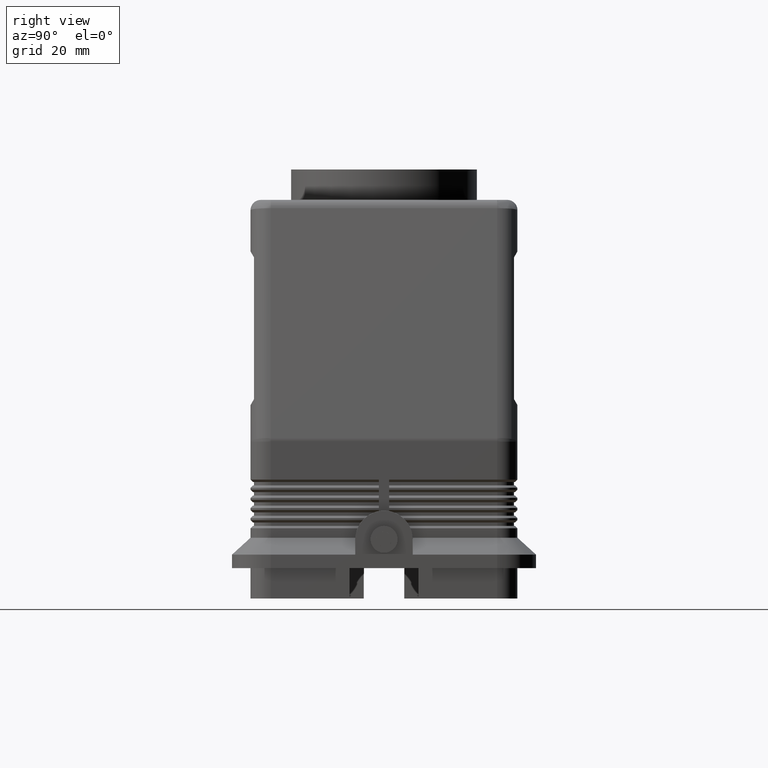
[diagram: clean part render]
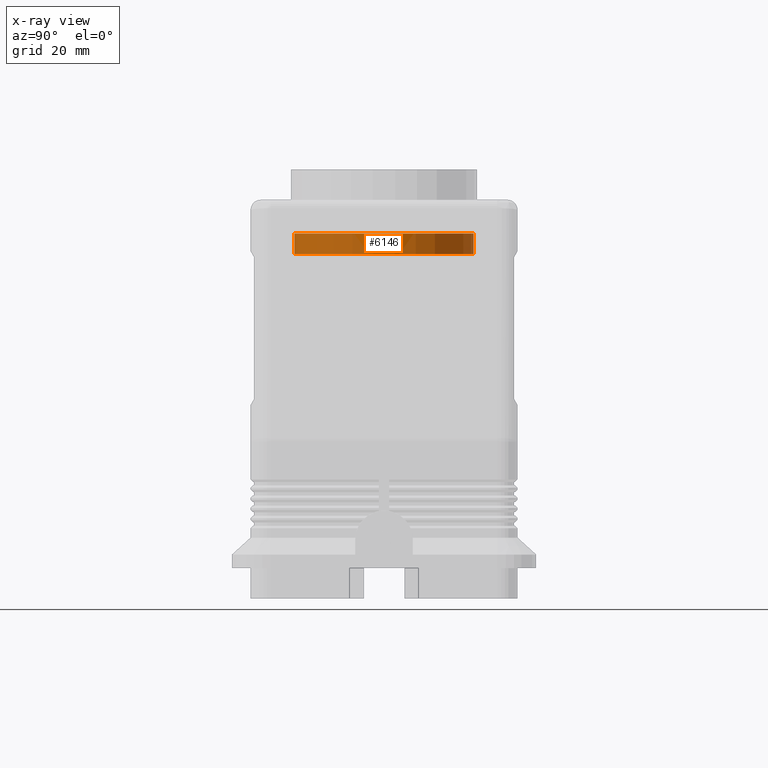
[diagram: x-ray — body ghosted, one internal face saturated and labeled with its STEP entity id]
A machine part, right view, then the same camera in x-ray: the body is ghosted and one INTERNAL B-rep face — a face not visible from any outside direction — is saturated and labeled: STEP entity #6146.
In plain terms, the highlighted cylindrical surface (partial cylindrical patch) has radius 26.5 mm, axis along (0, 0, -1).
Its self-contained STEP definition (entity closure, byte-faithful):
#6105=CARTESIAN_POINT('',(0.0,0.0,109.500000000000010));
#6106=DIRECTION('',(0.0,0.0,-1.0));
#6107=DIRECTION('',(0.0,1.0,0.0));
#6108=AXIS2_PLACEMENT_3D('',#6105,#6106,#6107);
#6109=CYLINDRICAL_SURFACE('',#6108,26.499999999999993);
#6110=CARTESIAN_POINT('',(-3.245207E-015,26.499999999999993,108.0));
#6111=VERTEX_POINT('',#6110);
#6112=CARTESIAN_POINT('',(0.0,26.500000000000000,102.000000000000010));
#6113=VERTEX_POINT('',#6112);
#6114=CARTESIAN_POINT('',(-3.245207E-015,26.499999999999993,108.0));
#6115=DIRECTION('',(0.0,0.0,-1.0));
#6116=VECTOR('',#6115,5.999999999999986);
#6117=LINE('',#6114,#6116);
#6118=EDGE_CURVE('',#6111,#6113,#6117,.T.);
#6119=ORIENTED_EDGE('',*,*,#6118,.F.);
#6120=CARTESIAN_POINT('',(3.245207E-015,-26.499999999999993,108.0));
#6121=VERTEX_POINT('',#6120);
#6122=CARTESIAN_POINT('',(0.0,0.0,108.0));
#6123=DIRECTION('',(0.0,0.0,1.0));
#6124=DIRECTION('',(0.0,1.0,0.0));
#6125=AXIS2_PLACEMENT_3D('',#6122,#6123,#6124);
#6126=CIRCLE('',#6125,26.499999999999993);
#6127=EDGE_CURVE('',#6121,#6111,#6126,.T.);
#6128=ORIENTED_EDGE('',*,*,#6127,.F.);
#6129=CARTESIAN_POINT('',(3.245207E-015,-26.500000000000000,102.0));
#6130=VERTEX_POINT('',#6129);
#6131=CARTESIAN_POINT('',(3.245207E-015,-26.500000000000000,102.0));
#6132=DIRECTION('',(0.0,0.0,1.0));
#6133=VECTOR('',#6132,6.0);
#6134=LINE('',#6131,#6133);
#6135=EDGE_CURVE('',#6130,#6121,#6134,.T.);
#6136=ORIENTED_EDGE('',*,*,#6135,.F.);
#6137=CARTESIAN_POINT('',(0.0,0.0,102.000000000000010));
#6138=DIRECTION('',(0.0,0.0,-1.0));
#6139=DIRECTION('',(0.0,1.0,0.0));
#6140=AXIS2_PLACEMENT_3D('',#6137,#6138,#6139);
#6141=CIRCLE('',#6140,26.500000000000000);
#6142=EDGE_CURVE('',#6113,#6130,#6141,.T.);
#6143=ORIENTED_EDGE('',*,*,#6142,.F.);
#6144=EDGE_LOOP('',(#6119,#6128,#6136,#6143));
#6145=FACE_OUTER_BOUND('',#6144,.T.);
#6146=ADVANCED_FACE('',(#6145),#6109,.T.);